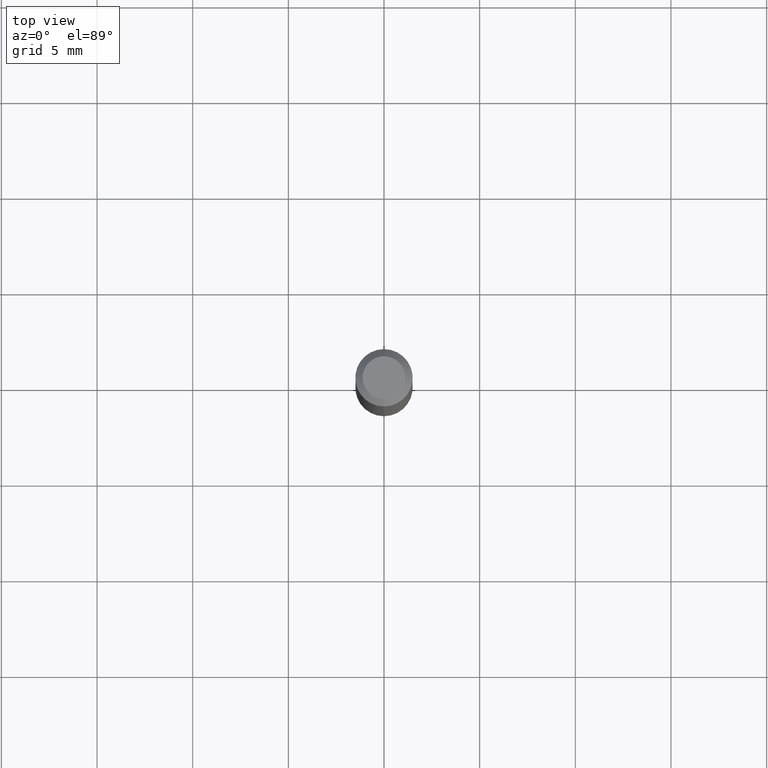
[diagram: clean part render]
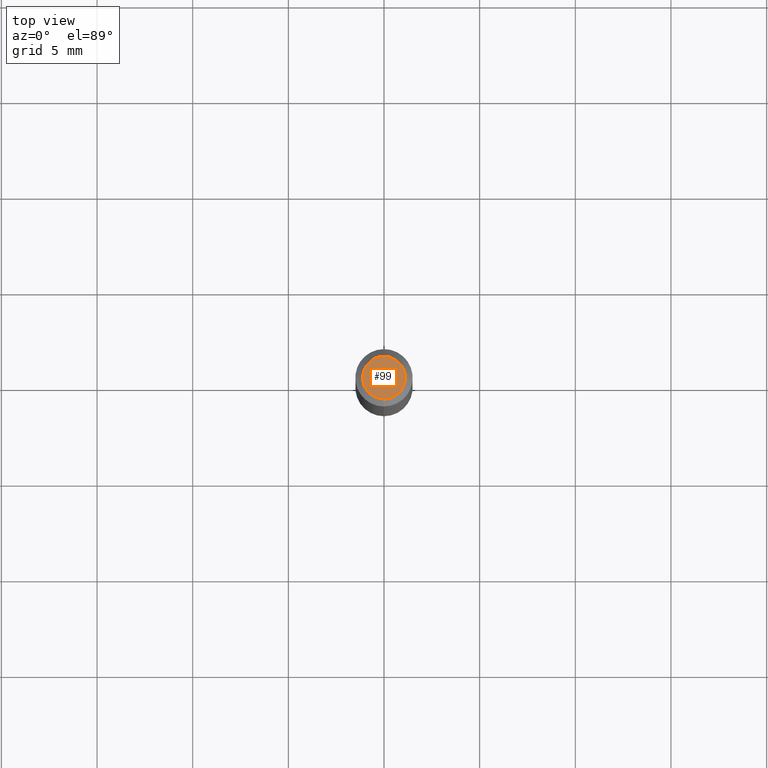
[diagram: same view with one face highlighted and labeled with its STEP entity id]
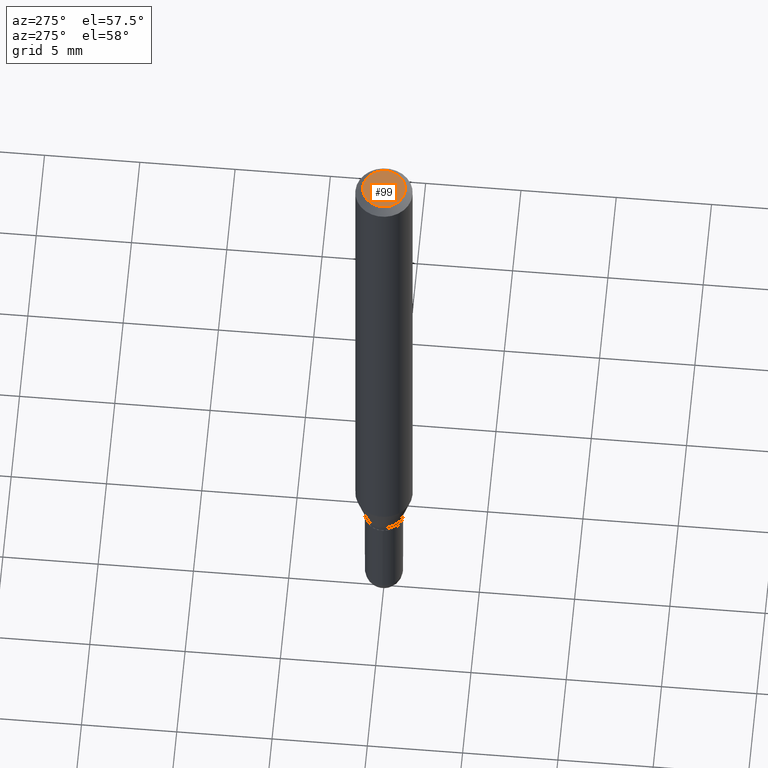
[diagram: same view with one face highlighted and labeled with its STEP entity id]
A machine part, top view. The second image highlights one B-rep face of the part: STEP entity #99.
A second angle (auxiliary view) of the same face is appended — the face is thin or edge-on in the first view.
In plain terms, the highlighted planar face has unit normal (0, -0, -1).
Its self-contained STEP definition (entity closure, byte-faithful):
#10 = DIRECTION ( 'NONE',  ( -2.445991447333329279E-29, 3.490732886972046653E-15, 1.000000000000000000 ) ) ;
#47 = DIRECTION ( 'NONE',  ( -6.982962677686265133E-15, -1.000000000000000000, 3.490732886972045864E-15 ) ) ;
#79 = ORIENTED_EDGE ( 'NONE', *, *, #143, .T. ) ;
#99 = ADVANCED_FACE ( 'NONE', ( #481 ), #253, .F. ) ;
#104 = CIRCLE ( 'NONE', #159, 0.04405000000000000582 ) ;
#108 = DIRECTION ( 'NONE',  ( -6.982962677686265133E-15, -1.000000000000000000, 3.490732886972045864E-15 ) ) ;
#143 = EDGE_CURVE ( 'NONE', #512, #222, #104, .T. ) ;
#159 = AXIS2_PLACEMENT_3D ( 'NONE', #249, #10, #47 ) ;
#162 = DIRECTION ( 'NONE',  ( 6.982962677686265922E-15, 1.000000000000000000, -3.490732886972046653E-15 ) ) ;
#165 = CARTESIAN_POINT ( 'NONE',  ( 3.075995059520800222E-16, 0.04405000000000000582, -3.855612639484373857E-16 ) ) ;
#179 = CIRCLE ( 'NONE', #330, 0.04405000000000000582 ) ;
#217 = CARTESIAN_POINT ( 'NONE',  ( 3.599717260347272986E-16, 0.04405000000000000582, -6.173557442257560111E-16 ) ) ;
#222 = VERTEX_POINT ( 'NONE', #378 ) ;
#246 = DIRECTION ( 'NONE',  ( 2.445991447333328999E-29, -3.490732886972046653E-15, -1.000000000000000000 ) ) ;
#249 = CARTESIAN_POINT ( 'NONE',  ( 1.133934632594791413E-44, -1.618265230645259765E-30, -4.635889605546374482E-16 ) ) ;
#253 = PLANE ( 'NONE',  #360 ) ;
#302 = ORIENTED_EDGE ( 'NONE', *, *, #399, .T. ) ;
#327 = EDGE_LOOP ( 'NONE', ( #79, #302 ) ) ;
#330 = AXIS2_PLACEMENT_3D ( 'NONE', #397, #459, #108 ) ;
#360 = AXIS2_PLACEMENT_3D ( 'NONE', #165, #246, #162 ) ;
#378 = CARTESIAN_POINT ( 'NONE',  ( -3.536586717851222711E-16, -0.04405000000000000582, -3.098221768835187866E-16 ) ) ;
#397 = CARTESIAN_POINT ( 'NONE',  ( 1.133934632594791413E-44, -1.618265230645259765E-30, -4.635889605546374482E-16 ) ) ;
#399 = EDGE_CURVE ( 'NONE', #222, #512, #179, .T. ) ;
#459 = DIRECTION ( 'NONE',  ( -2.445991447333329279E-29, 3.490732886972046653E-15, 1.000000000000000000 ) ) ;
#481 = FACE_OUTER_BOUND ( 'NONE', #327, .T. ) ;
#512 = VERTEX_POINT ( 'NONE', #217 ) ;